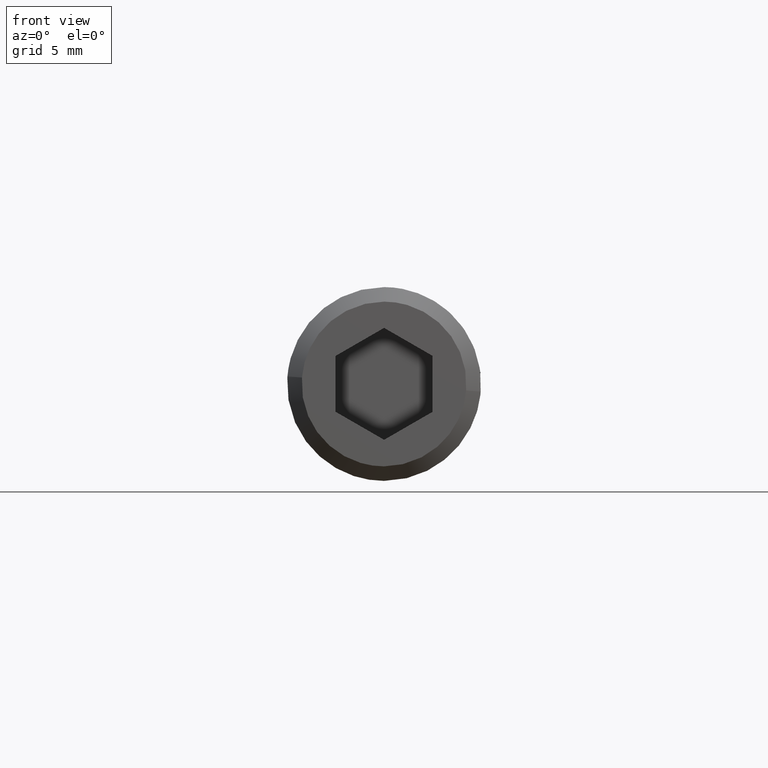
[diagram: clean part render]
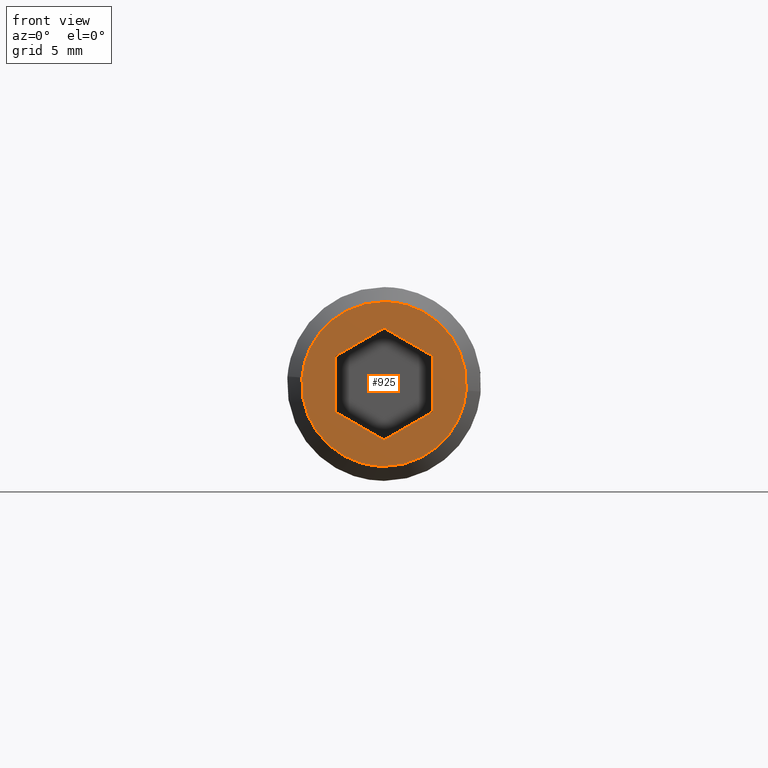
[diagram: same view with one face highlighted and labeled with its STEP entity id]
A machine part, front view. The second image highlights one B-rep face of the part: STEP entity #925.
In plain terms, the highlighted face is a freeform B-spline surface patch.
Its self-contained STEP definition (entity closure, byte-faithful):
#265=CARTESIAN_POINT('',(4.236898668370802,-34.399999999987429,-0.333451156939885));
#266=VERTEX_POINT('',#265);
#272=CARTESIAN_POINT('',(0.0,-34.399999999999999,-4.250000000000001));
#273=VERTEX_POINT('',#272);
#274=CARTESIAN_POINT('',(0.0,-34.399999999999999,-4.250000000000001));
#275=CARTESIAN_POINT('',(3.928659589369624,-34.400000000000006,-4.250000000000002));
#276=CARTESIAN_POINT('',(4.236898668370802,-34.399999999987436,-0.333451156939885));
#284=(BOUNDED_CURVE()B_SPLINE_CURVE(2,(#274,#275,#276),.UNSPECIFIED.,.F.,.U.)B_SPLINE_CURVE_WITH_KNOTS((3,3),(0.0,0.236331300625034),.UNSPECIFIED.)CURVE()GEOMETRIC_REPRESENTATION_ITEM()RATIONAL_B_SPLINE_CURVE((1.0,0.723120658614256,0.969723356155679))REPRESENTATION_ITEM(''));
#285=EDGE_CURVE('',#273,#266,#284,.T.);
#287=CARTESIAN_POINT('',(-4.236898668370805,-34.399999999987429,0.333451156939884));
#288=VERTEX_POINT('',#287);
#289=CARTESIAN_POINT('',(-4.236898668370805,-34.399999999987429,0.333451156939884));
#290=CARTESIAN_POINT('',(-4.249999999999999,-34.400000000000006,0.166982954878595));
#291=CARTESIAN_POINT('',(-4.250000000000000,-34.399999999999999,-7.898711E-016));
#292=CARTESIAN_POINT('',(-4.249999999999999,-34.400000000000006,-4.250000000000002));
#293=CARTESIAN_POINT('',(0.0,-34.399999999999999,-4.250000000000001));
#301=(BOUNDED_CURVE()B_SPLINE_CURVE(2,(#289,#290,#291,#292,#293),.UNSPECIFIED.,.F.,.U.)B_SPLINE_CURVE_WITH_KNOTS((3,2,3),(0.736331300625034,0.750000000000000,1.0),.UNSPECIFIED.)CURVE()GEOMETRIC_REPRESENTATION_ITEM()RATIONAL_B_SPLINE_CURVE((0.969723356155679,0.983986122572292,1.0,0.707106781186548,1.0))REPRESENTATION_ITEM(''));
#302=EDGE_CURVE('',#288,#273,#301,.T.);
#408=CARTESIAN_POINT('',(0.0,-34.399999999999999,4.249999999999999));
#409=VERTEX_POINT('',#408);
#410=CARTESIAN_POINT('',(0.0,-34.399999999999999,4.249999999999999));
#411=CARTESIAN_POINT('',(-3.928659589369623,-34.399999999999999,4.249999999999999));
#412=CARTESIAN_POINT('',(-4.236898668370805,-34.399999999987429,0.333451156939884));
#420=(BOUNDED_CURVE()B_SPLINE_CURVE(2,(#410,#411,#412),.UNSPECIFIED.,.F.,.U.)B_SPLINE_CURVE_WITH_KNOTS((3,3),(0.500000000000000,0.736331300625034),.UNSPECIFIED.)CURVE()GEOMETRIC_REPRESENTATION_ITEM()RATIONAL_B_SPLINE_CURVE((1.0,0.723120658614256,0.969723356155679))REPRESENTATION_ITEM(''));
#421=EDGE_CURVE('',#409,#288,#420,.T.);
#423=CARTESIAN_POINT('',(4.236898668370802,-34.399999999987436,-0.333451156939885));
#424=CARTESIAN_POINT('',(4.250000000000000,-34.399999999999999,-0.166982954878596));
#425=CARTESIAN_POINT('',(4.250000000000000,-34.399999999999999,-7.898711E-016));
#426=CARTESIAN_POINT('',(4.249999999999999,-34.400000000000006,4.249999999999998));
#427=CARTESIAN_POINT('',(0.0,-34.399999999999999,4.249999999999999));
#435=(BOUNDED_CURVE()B_SPLINE_CURVE(2,(#423,#424,#425,#426,#427),.UNSPECIFIED.,.F.,.U.)B_SPLINE_CURVE_WITH_KNOTS((3,2,3),(0.236331300625035,0.250000000000000,0.500000000000000),.UNSPECIFIED.)CURVE()GEOMETRIC_REPRESENTATION_ITEM()RATIONAL_B_SPLINE_CURVE((0.969723356155679,0.983986122572292,1.0,0.707106781186548,1.0))REPRESENTATION_ITEM(''));
#436=EDGE_CURVE('',#266,#409,#435,.T.);
#779=CARTESIAN_POINT('',(2.500000000000000,-34.399999999999999,1.443376000000000));
#780=VERTEX_POINT('',#779);
#781=CARTESIAN_POINT('',(0.0,-34.399999999999999,2.886751000000000));
#782=VERTEX_POINT('',#781);
#783=CARTESIAN_POINT('',(2.500000000000000,-34.399999999999999,1.443376000000000));
#784=CARTESIAN_POINT('',(0.0,-34.399999999999999,2.886751000000000));
#785=QUASI_UNIFORM_CURVE('',1,(#783,#784),.UNSPECIFIED.,.F.,.U.);
#786=EDGE_CURVE('',#780,#782,#785,.T.);
#807=CARTESIAN_POINT('',(2.500000000000000,-34.399999999999999,-1.443376000000000));
#808=VERTEX_POINT('',#807);
#809=CARTESIAN_POINT('',(2.500000000000000,-34.399999999999999,-1.443376000000000));
#810=CARTESIAN_POINT('',(2.500000000000000,-34.399999999999999,1.443376000000000));
#811=QUASI_UNIFORM_CURVE('',1,(#809,#810),.UNSPECIFIED.,.F.,.U.);
#812=EDGE_CURVE('',#808,#780,#811,.T.);
#829=CARTESIAN_POINT('',(0.0,-34.399999999999999,-2.886751000000000));
#830=VERTEX_POINT('',#829);
#831=CARTESIAN_POINT('',(0.0,-34.399999999999999,-2.886751000000000));
#832=CARTESIAN_POINT('',(2.500000000000000,-34.399999999999999,-1.443376000000000));
#833=QUASI_UNIFORM_CURVE('',1,(#831,#832),.UNSPECIFIED.,.F.,.U.);
#834=EDGE_CURVE('',#830,#808,#833,.T.);
#851=CARTESIAN_POINT('',(-2.500000000000000,-34.399999999999999,-1.443376000000000));
#852=VERTEX_POINT('',#851);
#853=CARTESIAN_POINT('',(-2.500000000000000,-34.399999999999999,-1.443376000000000));
#854=CARTESIAN_POINT('',(0.0,-34.399999999999999,-2.886751000000000));
#855=QUASI_UNIFORM_CURVE('',1,(#853,#854),.UNSPECIFIED.,.F.,.U.);
#856=EDGE_CURVE('',#852,#830,#855,.T.);
#873=CARTESIAN_POINT('',(-2.500000000000000,-34.399999999999999,1.443376000000000));
#874=VERTEX_POINT('',#873);
#875=CARTESIAN_POINT('',(-2.500000000000000,-34.399999999999999,1.443376000000000));
#876=CARTESIAN_POINT('',(-2.500000000000000,-34.399999999999999,-1.443376000000000));
#877=QUASI_UNIFORM_CURVE('',1,(#875,#876),.UNSPECIFIED.,.F.,.U.);
#878=EDGE_CURVE('',#874,#852,#877,.T.);
#895=CARTESIAN_POINT('',(0.0,-34.399999999999999,2.886751000000000));
#896=CARTESIAN_POINT('',(-2.500000000000000,-34.399999999999999,1.443376000000000));
#897=QUASI_UNIFORM_CURVE('',1,(#895,#896),.UNSPECIFIED.,.F.,.U.);
#898=EDGE_CURVE('',#782,#874,#897,.T.);
#906=CARTESIAN_POINT('',(-4.673277938464850,-34.399999999999999,-4.674574983525351));
#907=CARTESIAN_POINT('',(-4.673277938464850,-34.399999999999999,4.674575211513116));
#908=CARTESIAN_POINT('',(4.673277938464851,-34.399999999999999,-4.674574983525351));
#909=CARTESIAN_POINT('',(4.673277938464851,-34.399999999999999,4.674575211513116));
#910=B_SPLINE_SURFACE_WITH_KNOTS('',1,1,((#906,#908),(#907,#909)),.UNSPECIFIED.,.F.,.F.,.U.,(2,2),(2,2),(0.0,9.349150195038467),(0.0,9.346555876929703),.UNSPECIFIED.);
#911=ORIENTED_EDGE('',*,*,#285,.T.);
#912=ORIENTED_EDGE('',*,*,#436,.T.);
#913=ORIENTED_EDGE('',*,*,#421,.T.);
#914=ORIENTED_EDGE('',*,*,#302,.T.);
#915=EDGE_LOOP('',(#911,#912,#913,#914));
#916=FACE_OUTER_BOUND('',#915,.T.);
#917=ORIENTED_EDGE('',*,*,#878,.F.);
#918=ORIENTED_EDGE('',*,*,#898,.F.);
#919=ORIENTED_EDGE('',*,*,#786,.F.);
#920=ORIENTED_EDGE('',*,*,#812,.F.);
#921=ORIENTED_EDGE('',*,*,#834,.F.);
#922=ORIENTED_EDGE('',*,*,#856,.F.);
#923=EDGE_LOOP('',(#917,#918,#919,#920,#921,#922));
#924=FACE_BOUND('',#923,.T.);
#925=ADVANCED_FACE('',(#916,#924),#910,.F.);